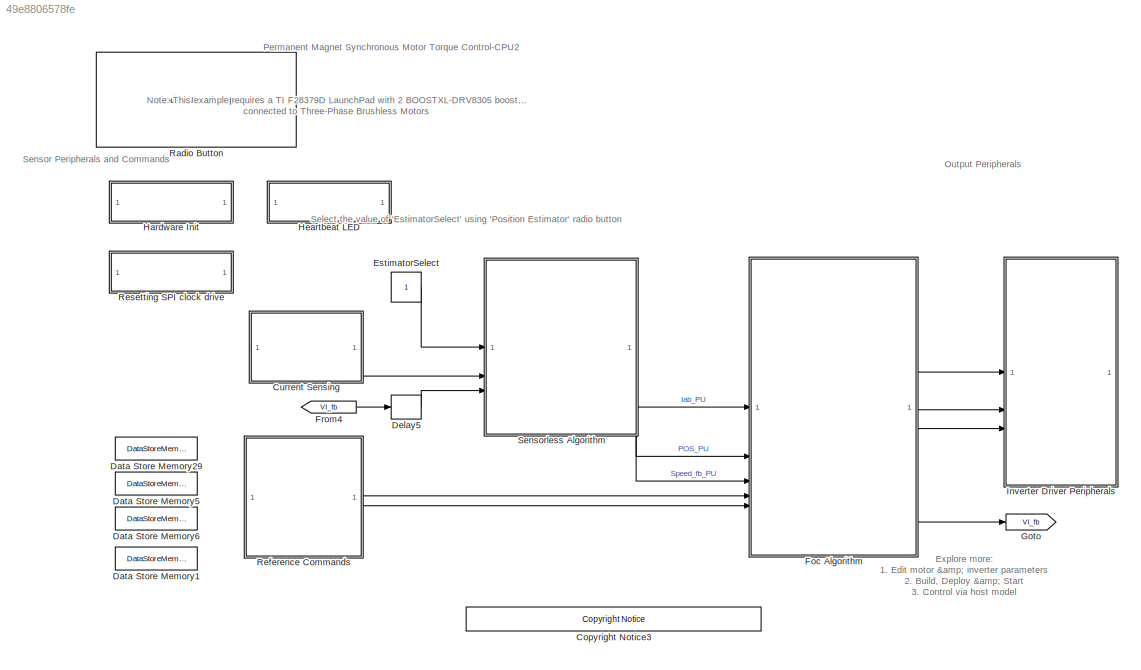
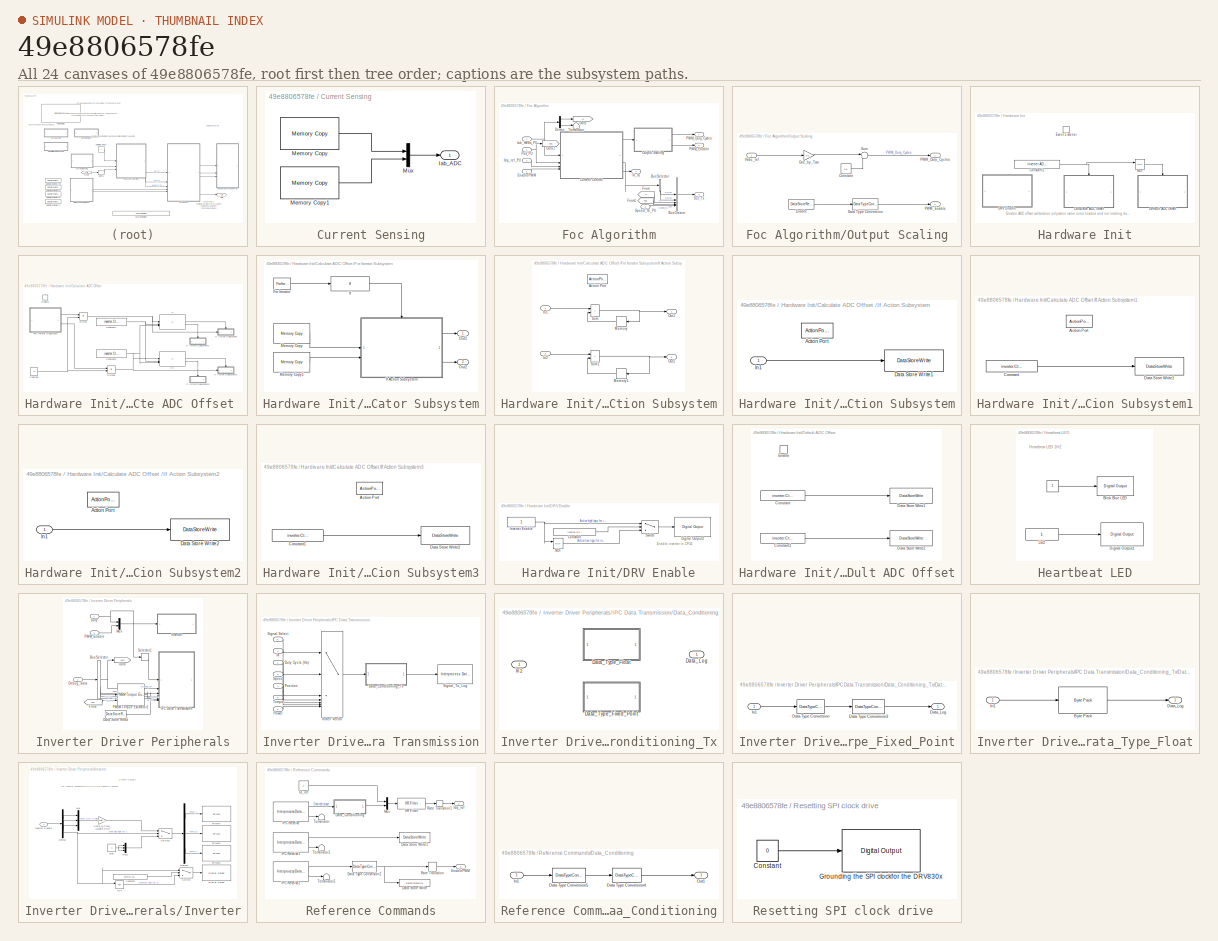
[diagram: thumbnail index - all 24 canvases of the model, root first then tree order]
MODEL slx_49e8806578fe
KIND model
CONFIG AbsTol = auto
CONFIG EnableMultiTasking = on
CONFIG FixedStep = auto
CONFIG InitFcn = mcb_pmsm_foc_dual_f28379d_datascript;
CONFIG MaxStep = auto
CONFIG MinStep = auto
CONFIG RelTol = 1e-3
CONFIG SampleTimeConstraint = Unconstrained
CONFIG SolverName = FixedStepDiscrete
CONFIG StartTime = 0.0
CONFIG StopTime = Inf
BLOCK [Reference] <copyright redacted>
  SourceBlock = demo_controls/<copyright redacted>
  SourceType = <copyright redacted>
BLOCK [SubSystem] Current Sensing
  RTWMemSecFuncExecute = code_ramfuncs
  RTWSystemCode = Nonreusable function
  SystemSampleTime = Ts
  TreatAsAtomicUnit = on
BLOCK [Outport] Current Sensing/Iab_ADC
BLOCK [Reference] Current Sensing/Memory Copy  REF=idelinklib_common/Memory Copy
  SourceBlock = idelinklib_common/Memory Copy
  SourceType = Memory Copy
BLOCK [Reference] Current Sensing/Memory Copy1  REF=idelinklib_common/Memory Copy
  SourceBlock = idelinklib_common/Memory Copy
  SourceType = Memory Copy
BLOCK [Mux] Current Sensing/Mux
  DisplayOption = bar
  Inputs = 2
BLOCK [DataStoreMemory] Data Store Memory1
  DataStoreName = SignalSelect2
  ShowAdditionalParam = off
BLOCK [DataStoreMemory] Data Store Memory29
  DataStoreName = Enable
  OutDataTypeStr = boolean
  ReadBeforeWriteMsg = warning
  ShowAdditionalParam = off
  WriteAfterReadMsg = warning
  WriteAfterWriteMsg = warning
BLOCK [DataStoreMemory] Data Store Memory5
  DataStoreName = IaOffset
  InitialValue = inverter.CtSensAOffset
  ShowAdditionalParam = off
BLOCK [DataStoreMemory] Data Store Memory6
  DataStoreName = IbOffset
  InitialValue = inverter.CtSensBOffset
  ShowAdditionalParam = off
BLOCK [Delay] Delay5
  DelayLength = 1
  InputPortMap = u0
BLOCK [Constant] EstimatorSelect
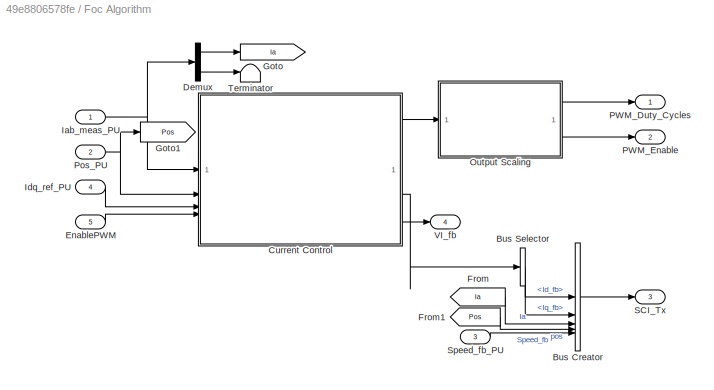
BLOCK [SubSystem] Foc Algorithm
  RTWMemSecFuncExecute = code_ramfuncs
  RTWSystemCode = Nonreusable function
  TreatAsAtomicUnit = on
BLOCK [BusCreator] Foc Algorithm/Bus Creator
  DisplayOption = bar
  InheritFromInputs = on
  Inputs = 5
BLOCK [BusSelector] Foc Algorithm/Bus Selector
  OutputSignals = Id_fb,Iq_fb
BLOCK [SubSystem] Foc Algorithm/Current Control
  Kid = PI_params.Ki_i*Ts
  Kiq = PI_params.Ki_i*Ts
  Kpd = PI_params.Kp_i
  Kpq = PI_params.Kp_i
  ReferencedSubsystem = current_control
BLOCK [Demux] Foc Algorithm/Demux
  Outputs = 2
BLOCK [Inport] Foc Algorithm/EnablePWM
  Port = 5
BLOCK [From] Foc Algorithm/From
  GotoTag = Ia
BLOCK [From] Foc Algorithm/From1
  GotoTag = Pos
BLOCK [Goto] Foc Algorithm/Goto
  GotoTag = Ia
BLOCK [Goto] Foc Algorithm/Goto1
  GotoTag = Pos
BLOCK [Inport] Foc Algorithm/Iab_meas_PU
BLOCK [Inport] Foc Algorithm/Idq_ref_PU
  Port = 4
BLOCK [SubSystem] Foc Algorithm/Output Scaling
BLOCK [Constant] Foc Algorithm/Output Scaling/Constant
  OutDataTypeStr = dataType
  SampleTime = -1
  Value = 0.5
BLOCK [DataTypeConversion] Foc Algorithm/Output Scaling/Data Type Conversion
  OutDataTypeStr = dataType
  RndMeth = Floor
  SaturateOnIntegerOverflow = off
BLOCK [DataStoreRead] Foc Algorithm/Output Scaling/Enable
  DataStoreName = Enable
  IndexOptions = Index vector (dialog)
  Indices = 1
  OutputSizes = 1
BLOCK [Gain] Foc Algorithm/Output Scaling/One_by_Two
  Gain = 0.5
  OutDataTypeStr = Inherit: Same as input
  RndMeth = Simplest
BLOCK [Outport] Foc Algorithm/Output Scaling/PWM_Duty_Cycles
BLOCK [Outport] Foc Algorithm/Output Scaling/PWM_Enable
  Port = 2
BLOCK [Sum] Foc Algorithm/Output Scaling/Sum
  AccumDataTypeStr = Inherit: Same as first input
  Inputs = |++
BLOCK [Inport] Foc Algorithm/Output Scaling/Vabc_ref
BLOCK [Outport] Foc Algorithm/PWM_Duty_Cycles
BLOCK [Outport] Foc Algorithm/PWM_Enable
  Port = 2
BLOCK [Inport] Foc Algorithm/Pos_PU
  Port = 2
BLOCK [Outport] Foc Algorithm/SCI_Tx
  Port = 3
BLOCK [Inport] Foc Algorithm/Speed_fb_PU
  Port = 3
BLOCK [Terminator] Foc Algorithm/Terminator
BLOCK [Outport] Foc Algorithm/VI_fb
  Port = 4
BLOCK [From] From4
  GotoTag = VI_fb
BLOCK [Goto] Goto
  GotoTag = VI_fb
BLOCK [SubSystem] Hardware Init
  TreatAsAtomicUnit = on
BLOCK [SubSystem] Hardware Init/Calculate ADC Offset 
  Priority = 1001
  TreatAsAtomicUnit = on
BLOCK [Constant] Hardware Init/Calculate ADC Offset /Constant
  Value = 8
BLOCK [Constant] Hardware Init/Calculate ADC Offset /Constant1
  OutDataTypeStr = Inherit: Inherit via back propagation
  Value = inverter.CtSensOffsetMax
BLOCK [Constant] Hardware Init/Calculate ADC Offset /Constant2
  OutDataTypeStr = Inherit: Inherit via back propagation
  Value = inverter.CtSensOffsetMin
BLOCK [Product] Hardware Init/Calculate ADC Offset /Divide
  Inputs = */
  OutDataTypeStr = uint16
BLOCK [Product] Hardware Init/Calculate ADC Offset /Divide1
  Inputs = */
  OutDataTypeStr = uint16
BLOCK [EnablePort] Hardware Init/Calculate ADC Offset /Enable
BLOCK [SubSystem] Hardware Init/Calculate ADC Offset /For Iterator Subsystem
  TreatAsAtomicUnit = on
BLOCK [ForIterator] Hardware Init/Calculate ADC Offset /For Iterator Subsystem/For Iterator
  IterationLimit = 16
  IterationVariableDataType = uint16
BLOCK [If] Hardware Init/Calculate ADC Offset /For Iterator Subsystem/If
  IfExpression = u1 > 8
  ShowElse = off
BLOCK [SubSystem] Hardware Init/Calculate ADC Offset /For Iterator Subsystem/If Action Subsystem
  TreatAsAtomicUnit = on
BLOCK [ActionPort] Hardware Init/Calculate ADC Offset /For Iterator Subsystem/If Action Subsystem/Action Port
BLOCK [Inport] Hardware Init/Calculate ADC Offset /For Iterator Subsystem/If Action Subsystem/In1
BLOCK [Inport] Hardware Init/Calculate ADC Offset /For Iterator Subsystem/If Action Subsystem/In2
  Port = 2
BLOCK [Memory] Hardware Init/Calculate ADC Offset /For Iterator Subsystem/If Action Subsystem/Memory
  InheritSampleTime = on
  NameLocation = top
BLOCK [Memory] Hardware Init/Calculate ADC Offset /For Iterator Subsystem/If Action Subsystem/Memory1
  InheritSampleTime = on
  NameLocation = top
BLOCK [Outport] Hardware Init/Calculate ADC Offset /For Iterator Subsystem/If Action Subsystem/Out1
BLOCK [Outport] Hardware Init/Calculate ADC Offset /For Iterator Subsystem/If Action Subsystem/Out2
  Port = 2
BLOCK [Sum] Hardware Init/Calculate ADC Offset /For Iterator Subsystem/If Action Subsystem/Sum
  IconShape = rectangular
BLOCK [Sum] Hardware Init/Calculate ADC Offset /For Iterator Subsystem/If Action Subsystem/Sum1
  IconShape = rectangular
BLOCK [Reference] Hardware Init/Calculate ADC Offset /For Iterator Subsystem/Memory Copy  REF=idelinklib_common/Memory Copy
  SourceBlock = idelinklib_common/Memory Copy
  SourceType = Memory Copy
BLOCK [Reference] Hardware Init/Calculate ADC Offset /For Iterator Subsystem/Memory Copy1  REF=idelinklib_common/Memory Copy
  SourceBlock = idelinklib_common/Memory Copy
  SourceType = Memory Copy
BLOCK [Outport] Hardware Init/Calculate ADC Offset /For Iterator Subsystem/Out1
BLOCK [Outport] Hardware Init/Calculate ADC Offset /For Iterator Subsystem/Out2
  Port = 2
BLOCK [If] Hardware Init/Calculate ADC Offset /If
  IfExpression = u1 > u3 & u1 < u2
  NumInputs = 3
BLOCK [SubSystem] Hardware Init/Calculate ADC Offset /If Action Subsystem
  TreatAsAtomicUnit = on
BLOCK [ActionPort] Hardware Init/Calculate ADC Offset /If Action Subsystem/Action Port
BLOCK [DataStoreWrite] Hardware Init/Calculate ADC Offset /If Action Subsystem/Data Store Write1
  DataStoreName = IaOffset
  IndexOptions = Index vector (dialog)
  Indices = 1
  OutputSizes = 1
BLOCK [Inport] Hardware Init/Calculate ADC Offset /If Action Subsystem/In1
BLOCK [SubSystem] Hardware Init/Calculate ADC Offset /If Action Subsystem1
  TreatAsAtomicUnit = on
BLOCK [ActionPort] Hardware Init/Calculate ADC Offset /If Action Subsystem1/Action Port
BLOCK [Constant] Hardware Init/Calculate ADC Offset /If Action Subsystem1/Constant
  OutDataTypeStr = Inherit: Inherit via back propagation
  Value = inverter.CtSensAOffset
BLOCK [DataStoreWrite] Hardware Init/Calculate ADC Offset /If Action Subsystem1/Data Store Write1
  DataStoreName = IaOffset
  IndexOptions = Index vector (dialog)
  Indices = 1
  OutputSizes = 1
BLOCK [SubSystem] Hardware Init/Calculate ADC Offset /If Action Subsystem2
  TreatAsAtomicUnit = on
BLOCK [ActionPort] Hardware Init/Calculate ADC Offset /If Action Subsystem2/Action Port
BLOCK [DataStoreWrite] Hardware Init/Calculate ADC Offset /If Action Subsystem2/Data Store Write2
  DataStoreName = IbOffset
  IndexOptions = Index vector (dialog)
  Indices = 1
  OutputSizes = 1
BLOCK [Inport] Hardware Init/Calculate ADC Offset /If Action Subsystem2/In1
BLOCK [SubSystem] Hardware Init/Calculate ADC Offset /If Action Subsystem3
  TreatAsAtomicUnit = on
BLOCK [ActionPort] Hardware Init/Calculate ADC Offset /If Action Subsystem3/Action Port
BLOCK [Constant] Hardware Init/Calculate ADC Offset /If Action Subsystem3/Constant1
  OutDataTypeStr = Inherit: Inherit via back propagation
  Value = inverter.CtSensBOffset
BLOCK [DataStoreWrite] Hardware Init/Calculate ADC Offset /If Action Subsystem3/Data Store Write2
  DataStoreName = IbOffset
  IndexOptions = Index vector (dialog)
  Indices = 1
  OutputSizes = 1
BLOCK [If] Hardware Init/Calculate ADC Offset /If1
  IfExpression = u1 > u3 & u1 < u2
  NumInputs = 3
BLOCK [Constant] Hardware Init/Constant1
  Value = inverter.ADCOffsetCalibEnable
BLOCK [SubSystem] Hardware Init/DRV Enable
  Priority = 1
BLOCK [Constant] Hardware Init/DRV Enable/Constant
  Value = inverter.EnableLogic
BLOCK [Reference] Hardware Init/DRV Enable/Digital Output2  REF=c2837xDlib/Digital Output
  SourceBlock = c2837xDlib/Digital Output
  SourceType = F2837x GPIO Digital Output
  UserDataPersistent = on
BLOCK [Constant] Hardware Init/DRV Enable/Inverter Enable
  OutDataTypeStr = uint16
  SampleTime = -1
BLOCK [Logic] Hardware Init/DRV Enable/NOT
  AllPortsSameDT = off
  IconShape = distinctive
  Operator = NOT
  OutDataTypeStr = boolean
BLOCK [Switch] Hardware Init/DRV Enable/Switch
  Criteria = u2 > Threshold
  InputSameDT = off
  SaturateOnIntegerOverflow = off
BLOCK [SubSystem] Hardware Init/Default ADC Offset
  Priority = 1001
  TreatAsAtomicUnit = on
BLOCK [Constant] Hardware Init/Default ADC Offset/Constant
  OutDataTypeStr = Inherit: Inherit via back propagation
  Value = inverter.CtSensAOffset
BLOCK [Constant] Hardware Init/Default ADC Offset/Constant1
  OutDataTypeStr = Inherit: Inherit via back propagation
  Value = inverter.CtSensBOffset
BLOCK [DataStoreWrite] Hardware Init/Default ADC Offset/Data Store Write1
  DataStoreName = IaOffset
  IndexOptions = Index vector (dialog)
  Indices = 1
  OutputSizes = 1
BLOCK [DataStoreWrite] Hardware Init/Default ADC Offset/Data Store Write2
  DataStoreName = IbOffset
  IndexOptions = Index vector (dialog)
  Indices = 1
  OutputSizes = 1
BLOCK [EnablePort] Hardware Init/Default ADC Offset/Enable
BLOCK [EventListener] Hardware Init/Event Listener
  DisableCoverage = on
  EventName = reset
BLOCK [Logic] Hardware Init/NOT
  AllPortsSameDT = off
  IconShape = distinctive
  Operator = NOT
  OutDataTypeStr = boolean
BLOCK [SubSystem] Heartbeat LED
  TreatAsAtomicUnit = on
BLOCK [Constant] Heartbeat LED/ 
  OutDataTypeStr = uint16
  SampleTime = 0.5
BLOCK [Reference] Heartbeat LED/Blink Blue LED  REF=c2837xDlib/Digital Output
  SourceBlock = c2837xDlib/Digital Output
  SourceType = F2837x GPIO Digital Output
  UserDataPersistent = on
BLOCK [Reference] Heartbeat LED/Digital Output1  REF=c2837xDlib/Digital Output
  SourceBlock = c2837xDlib/Digital Output
  SourceType = F2837x GPIO Digital Output
  UserDataPersistent = on
BLOCK [Constant] Heartbeat LED/LED
  OutDataTypeStr = uint16
  SampleTime = -1
BLOCK [SubSystem] Inverter Driver Peripherals
  RTWMemSecFuncExecute = code_ramfuncs
  RTWSystemCode = Nonreusable function
  TreatAsAtomicUnit = on
BLOCK [BusSelector] Inverter Driver Peripherals/Bus Selector
  OutputSignals = Speed_fb,pos,Ia,Id_fb,Iq_fb
BLOCK [DataStoreRead] Inverter Driver Peripherals/Data Store Read
  DataStoreName = SignalSelect2
  IndexOptions = Index vector (dialog)
  Indices = 1
  OutputSizes = 1
BLOCK [Inport] Inverter Driver Peripherals/Debug_data
  Port = 3
BLOCK [Inport] Inverter Driver Peripherals/Duty
BLOCK [From] Inverter Driver Peripherals/From
  GotoTag = Wm
BLOCK [Goto] Inverter Driver Peripherals/Goto
  GotoTag = Wm
BLOCK [SubSystem] Inverter Driver Peripherals/IPC Data Transmission
BLOCK [SubSystem] Inverter Driver Peripherals/IPC Data Transmission/Data_Conditioning_Tx
  Variant = on
BLOCK [Outport] Inverter Driver Peripherals/IPC Data Transmission/Data_Conditioning_Tx/Data_Log
BLOCK [SubSystem] Inverter Driver Peripherals/IPC Data Transmission/Data_Conditioning_Tx/Data_Type_Fixed_Point
  VariantControl = ~isequal(dataType,'single')
BLOCK [DataTypeConversion] Inverter Driver Peripherals/IPC Data Transmission/Data_Conditioning_Tx/Data_Type_Fixed_Point/Data Type Conversion
  OutDataTypeStr = fixdt(1,32,28)
  RndMeth = Simplest
  SaturateOnIntegerOverflow = off
BLOCK [DataTypeConversion] Inverter Driver Peripherals/IPC Data Transmission/Data_Conditioning_Tx/Data_Type_Fixed_Point/Data Type Conversion3
  ConvertRealWorld = Stored Integer (SI)
  OutDataTypeStr = uint32
  RndMeth = Simplest
  SaturateOnIntegerOverflow = off
BLOCK [Outport] Inverter Driver Peripherals/IPC Data Transmission/Data_Conditioning_Tx/Data_Type_Fixed_Point/Data_Log
BLOCK [Inport] Inverter Driver Peripherals/IPC Data Transmission/Data_Conditioning_Tx/Data_Type_Fixed_Point/In1
BLOCK [SubSystem] Inverter Driver Peripherals/IPC Data Transmission/Data_Conditioning_Tx/Data_Type_Float
  VariantControl = isequal(dataType, 'single')
BLOCK [Reference] Inverter Driver Peripherals/IPC Data Transmission/Data_Conditioning_Tx/Data_Type_Float/Byte Pack  REF=svdutilitieslib/Byte Pack
  SourceBlock = svdutilitieslib/Byte Pack
  SourceType = Byte pack
BLOCK [Outport] Inverter Driver Peripherals/IPC Data Transmission/Data_Conditioning_Tx/Data_Type_Float/Data_Log
BLOCK [Inport] Inverter Driver Peripherals/IPC Data Transmission/Data_Conditioning_Tx/Data_Type_Float/In1
BLOCK [Inport] Inverter Driver Peripherals/IPC Data Transmission/Data_Conditioning_Tx/In1
BLOCK [Inport] Inverter Driver Peripherals/IPC Data Transmission/Duty Cycle (Va)
BLOCK [Inport] Inverter Driver Peripherals/IPC Data Transmission/Ia
  Port = 4
BLOCK [MultiPortSwitch] Inverter Driver Peripherals/IPC Data Transmission/Index Vector
  DataPortOrder = Zero-based contiguous
  InputSameDT = off
  Inputs = 6
  SaturateOnIntegerOverflow = off
  zeroidx = on
BLOCK [Inport] Inverter Driver Peripherals/IPC Data Transmission/Position
  Port = 3
BLOCK [Inport] Inverter Driver Peripherals/IPC Data Transmission/Power
  Port = 6
BLOCK [Inport] Inverter Driver Peripherals/IPC Data Transmission/Signal Select
  Port = 7
BLOCK [Reference] Inverter Driver Peripherals/IPC Data Transmission/Signal_To_Log  REF=procinterlib/Interprocess Data Write
  SourceBlock = procinterlib/Interprocess Data Write
  SourceType = Interprocess Data Write
BLOCK [Inport] Inverter Driver Peripherals/IPC Data Transmission/Speed
  Port = 2
BLOCK [Inport] Inverter Driver Peripherals/IPC Data Transmission/Torque
  Port = 5
BLOCK [SubSystem] Inverter Driver Peripherals/Inverter
BLOCK [Constant] Inverter Driver Peripherals/Inverter/Constant
  Value = inverter.EnableLogic
BLOCK [Demux] Inverter Driver Peripherals/Inverter/Demux
BLOCK [Demux] Inverter Driver Peripherals/Inverter/Demux1
  Outputs = 3
BLOCK [Reference] Inverter Driver Peripherals/Inverter/Digital Output  REF=c2837xDlib/Digital Output
  SourceBlock = c2837xDlib/Digital Output
  SourceType = F2837x GPIO Digital Output
  UserDataPersistent = on
BLOCK [Inport] Inverter Driver Peripherals/Inverter/Inverter Signals
BLOCK [Mux] Inverter Driver Peripherals/Inverter/Mux
  DisplayOption = bar
  Inputs = 3
BLOCK [Mux] Inverter Driver Peripherals/Inverter/Mux2
  DisplayOption = bar
  Inputs = 3
BLOCK [Logic] Inverter Driver Peripherals/Inverter/NOT
  AllPortsSameDT = off
  IconShape = distinctive
  Operator = NOT
  OutDataTypeStr = boolean
BLOCK [Gain] Inverter Driver Peripherals/Inverter/Scale_to_PWM_Counter_PRD
  Gain = target.PWM_Counter_Period
  OutDataTypeStr = uint16
  RndMeth = Simplest
BLOCK [Switch] Inverter Driver Peripherals/Inverter/Switch
  Criteria = u2 > Threshold
  InputSameDT = off
  SaturateOnIntegerOverflow = off
BLOCK [Switch] Inverter Driver Peripherals/Inverter/Switch1
  InputSameDT = off
  SaturateOnIntegerOverflow = off
  Threshold = 0.5
BLOCK [Reference] Inverter Driver Peripherals/Inverter/ePWM4  REF=c2802xlib/ePWM
  SourceBlock = c2802xlib/ePWM
  SourceType = ePWM Type 1-4
  UserDataPersistent = on
BLOCK [Reference] Inverter Driver Peripherals/Inverter/ePWM5  REF=c2802xlib/ePWM
  SourceBlock = c2802xlib/ePWM
  SourceType = ePWM Type 1-4
  UserDataPersistent = on
BLOCK [Reference] Inverter Driver Peripherals/Inverter/ePWM6  REF=c2802xlib/ePWM
  SourceBlock = c2802xlib/ePWM
  SourceType = ePWM Type 1-4
  UserDataPersistent = on
BLOCK [Constant] Inverter Driver Peripherals/Inverter/stop
  OutDataTypeStr = uint16
  Value = 0
BLOCK [Mux] Inverter Driver Peripherals/Mux
  DisplayOption = bar
  Inputs = 2
BLOCK [Reference] Inverter Driver Peripherals/PMSM Torque Estimator1  REF=mcbpmsmnonlinearlib/PMSM Torque Estimator
  SourceBlock = mcbpmsmnonlinearlib/PMSM Torque Estimator
  SourceType = PMSM Torque Estimator
BLOCK [Inport] Inverter Driver Peripherals/PWM_Enable
  Port = 2
BLOCK [Selector] Inverter Driver Peripherals/Selector1
  IndexOptions = Index vector (dialog)
  Indices = [1]
  InputPortWidth = 3
  OutputSizes = 1
BLOCK [RadioButtonGroup] Radio Button
  ButtonGroupName = Postion Estimator
  LabelPosition = Hide
  SelectedLabel = Flux observer
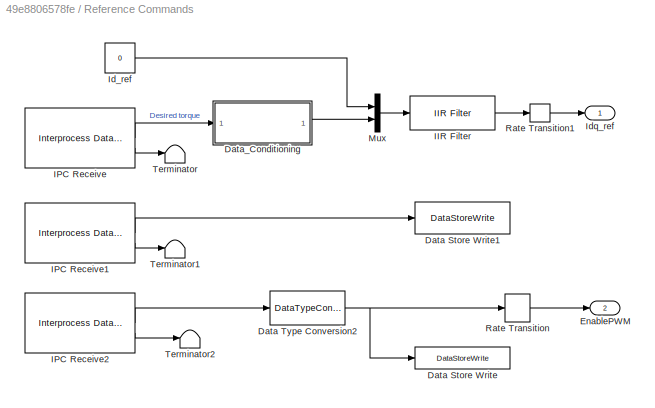
BLOCK [SubSystem] Reference Commands
BLOCK [DataStoreWrite] Reference Commands/Data Store Write
  DataStoreName = Enable
  IndexOptions = Index vector (dialog)
  Indices = 1
  OutputSizes = 1
BLOCK [DataStoreWrite] Reference Commands/Data Store Write1
  DataStoreName = SignalSelect2
  IndexOptions = Index vector (dialog)
  Indices = 1
  OutputSizes = 1
BLOCK [DataTypeConversion] Reference Commands/Data Type Conversion2
  OutDataTypeStr = boolean
  RndMeth = Floor
  SaturateOnIntegerOverflow = off
BLOCK [SubSystem] Reference Commands/Data_Conditioning
BLOCK [DataTypeConversion] Reference Commands/Data_Conditioning/Data Type Conversion4
  OutDataTypeStr = dataType
  RndMeth = Simplest
  SaturateOnIntegerOverflow = off
BLOCK [DataTypeConversion] Reference Commands/Data_Conditioning/Data Type Conversion5
  ConvertRealWorld = Stored Integer (SI)
  OutDataTypeStr = fixdt(1,32,28)
  RndMeth = Simplest
  SaturateOnIntegerOverflow = off
BLOCK [Inport] Reference Commands/Data_Conditioning/In1
BLOCK [Outport] Reference Commands/Data_Conditioning/Out1
BLOCK [Outport] Reference Commands/EnablePWM
  Port = 2
BLOCK [Reference] Reference Commands/IIR Filter  REF=mcbcontrolslib/IIR Filter
  SourceBlock = mcbcontrolslib/IIR Filter
  SourceType = IIR Filter
BLOCK [Reference] Reference Commands/IPC Receive  REF=procinterlib/Interprocess Data Read
  SourceBlock = procinterlib/Interprocess Data Read
  SourceType = Interprocess Data Read
BLOCK [Reference] Reference Commands/IPC Receive1  REF=procinterlib/Interprocess Data Read
  SourceBlock = procinterlib/Interprocess Data Read
  SourceType = Interprocess Data Read
BLOCK [Reference] Reference Commands/IPC Receive2  REF=procinterlib/Interprocess Data Read
  SourceBlock = procinterlib/Interprocess Data Read
  SourceType = Interprocess Data Read
BLOCK [Constant] Reference Commands/Id_ref
  OutDataTypeStr = dataType
  Value = 0
BLOCK [Outport] Reference Commands/Idq_ref
  VectorParamsAs1DForOutWhenUnconnected = off
BLOCK [Mux] Reference Commands/Mux
  DisplayOption = bar
  Inputs = 2
BLOCK [RateTransition] Reference Commands/Rate Transition
  Deterministic = off
BLOCK [RateTransition] Reference Commands/Rate Transition1
  Integrity = off
BLOCK [Terminator] Reference Commands/Terminator
BLOCK [Terminator] Reference Commands/Terminator1
BLOCK [Terminator] Reference Commands/Terminator2
BLOCK [SubSystem] Resetting SPI clock drive 
BLOCK [Constant] Resetting SPI clock drive /Constant
  OutDataTypeStr = uint16
  SampleTime = 0.01
  Value = 0
BLOCK [Reference] Resetting SPI clock drive /Grounding the SPI clockfor the DRV830x  REF=c2837xDlib/Digital Output
  SourceBlock = c2837xDlib/Digital Output
  SourceType = F2837x GPIO Digital Output
  UserDataPersistent = on
BLOCK [SubSystem] Sensorless Algorithm
  RTWMemSecFuncExecute = code_ramfuncs
  RTWSystemCode = Nonreusable function
  ReferencedSubsystem = sensorless_algorithm
  TreatAsAtomicUnit = on
ANNOTATION (root): Explore more: 1. Edit motor & inverter parameters 2. Build, Deploy & Start 3. Control via host model
ANNOTATION (root): Note: This example requires a TI F28379D LaunchPad with 2 BOOSTXL-DRV8305 booster packs connected to Three-Phase Brushless Motors
ANNOTATION (root): Output Peripherals
ANNOTATION (root): Permanent Magnet Synchronous Motor Torque Control-CPU2
ANNOTATION (root): Select the value of 'EstimatorSelect' using 'Position Estimator' radio button
ANNOTATION (root): Sensor Peripherals and Commands
ANNOTATION Hardware Init: Enable ADC offset calibration only when motor is not loaded and not rotating due to external factors
ANNOTATION Hardware Init/DRV Enable: Enable inverter in CPU2
ANNOTATION Heartbeat LED: Heartbeat LED 1HZ
ANNOTATION Inverter Driver Peripherals/Inverter: System Outputs
ANNOTATION Inverter Driver Peripherals/Inverter: for inverter connected with CPU2 of LaunchXL-28379D
LINE Current Sensing/Memory Copy1:1 -> Current Sensing/Mux:2
LINE Current Sensing/Memory Copy:1 -> Current Sensing/Mux:1
LINE Current Sensing/Mux:1 -> Current Sensing/Iab_ADC:1
LINE Current Sensing:1 -> Sensorless Algorithm:2
LINE Delay5:1 -> Sensorless Algorithm:3
LINE EstimatorSelect:1 -> Sensorless Algorithm:1
LINE Foc Algorithm/Bus Creator:1 -> Foc Algorithm/SCI_Tx:1
LINE Foc Algorithm/Bus Selector:1 -> Foc Algorithm/Bus Creator:1
LINE Foc Algorithm/Bus Selector:2 -> Foc Algorithm/Bus Creator:2
LINE Foc Algorithm/Current Control:1 -> Foc Algorithm/Output Scaling:1
LINE Foc Algorithm/Current Control:2 -> Foc Algorithm/Bus Selector:1
LINE Foc Algorithm/Current Control:3 -> Foc Algorithm/VI_fb:1
LINE Foc Algorithm/Demux:1 -> Foc Algorithm/Goto:1
LINE Foc Algorithm/Demux:2 -> Foc Algorithm/Terminator:1
LINE Foc Algorithm/EnablePWM:1 -> Foc Algorithm/Current Control:4
LINE Foc Algorithm/From1:1 -> Foc Algorithm/Bus Creator:4
LINE Foc Algorithm/From:1 -> Foc Algorithm/Bus Creator:3
NET Foc Algorithm/Iab_meas_PU:1 -> Foc Algorithm/Current Control:1, Foc Algorithm/Demux:1
LINE Foc Algorithm/Idq_ref_PU:1 -> Foc Algorithm/Current Control:3
LINE Foc Algorithm/Output Scaling/Constant:1 -> Foc Algorithm/Output Scaling/Sum:2
LINE Foc Algorithm/Output Scaling/Data Type Conversion:1 -> Foc Algorithm/Output Scaling/PWM_Enable:1
LINE Foc Algorithm/Output Scaling/Enable:1 -> Foc Algorithm/Output Scaling/Data Type Conversion:1
LINE Foc Algorithm/Output Scaling/One_by_Two:1 -> Foc Algorithm/Output Scaling/Sum:1
LINE Foc Algorithm/Output Scaling/Sum:1 -> Foc Algorithm/Output Scaling/PWM_Duty_Cycles:1
LINE Foc Algorithm/Output Scaling/Vabc_ref:1 -> Foc Algorithm/Output Scaling/One_by_Two:1
LINE Foc Algorithm/Output Scaling:1 -> Foc Algorithm/PWM_Duty_Cycles:1
LINE Foc Algorithm/Output Scaling:2 -> Foc Algorithm/PWM_Enable:1
NET Foc Algorithm/Pos_PU:1 -> Foc Algorithm/Current Control:2, Foc Algorithm/Goto1:1
LINE Foc Algorithm/Speed_fb_PU:1 -> Foc Algorithm/Bus Creator:5
LINE Foc Algorithm:1 -> Inverter Driver Peripherals:1
LINE Foc Algorithm:2 -> Inverter Driver Peripherals:2
LINE Foc Algorithm:3 -> Inverter Driver Peripherals:3
LINE Foc Algorithm:4 -> Goto:1
LINE From4:1 -> Delay5:1
NET Hardware Init/Calculate ADC Offset /Constant1:1 -> Hardware Init/Calculate ADC Offset /If1:2, Hardware Init/Calculate ADC Offset /If:2
NET Hardware Init/Calculate ADC Offset /Constant2:1 -> Hardware Init/Calculate ADC Offset /If1:3, Hardware Init/Calculate ADC Offset /If:3
NET Hardware Init/Calculate ADC Offset /Constant:1 -> Hardware Init/Calculate ADC Offset /Divide1:2, Hardware Init/Calculate ADC Offset /Divide:2
NET Hardware Init/Calculate ADC Offset /Divide1:1 -> Hardware Init/Calculate ADC Offset /If Action Subsystem2:1, Hardware Init/Calculate ADC Offset /If1:1
NET Hardware Init/Calculate ADC Offset /Divide:1 -> Hardware Init/Calculate ADC Offset /If Action Subsystem:1, Hardware Init/Calculate ADC Offset /If:1
LINE Hardware Init/Calculate ADC Offset /For Iterator Subsystem/For Iterator:1 -> Hardware Init/Calculate ADC Offset /For Iterator Subsystem/If:1
LINE Hardware Init/Calculate ADC Offset /For Iterator Subsystem/If Action Subsystem/In1:1 -> Hardware Init/Calculate ADC Offset /For Iterator Subsystem/If Action Subsystem/Sum:1
LINE Hardware Init/Calculate ADC Offset /For Iterator Subsystem/If Action Subsystem/In2:1 -> Hardware Init/Calculate ADC Offset /For Iterator Subsystem/If Action Subsystem/Sum1:1
LINE Hardware Init/Calculate ADC Offset /For Iterator Subsystem/If Action Subsystem/Memory1:1 -> Hardware Init/Calculate ADC Offset /For Iterator Subsystem/If Action Subsystem/Sum1:2
LINE Hardware Init/Calculate ADC Offset /For Iterator Subsystem/If Action Subsystem/Memory:1 -> Hardware Init/Calculate ADC Offset /For Iterator Subsystem/If Action Subsystem/Sum:2
NET Hardware Init/Calculate ADC Offset /For Iterator Subsystem/If Action Subsystem/Sum1:1 -> Hardware Init/Calculate ADC Offset /For Iterator Subsystem/If Action Subsystem/Memory1:1, Hardware Init/Calculate ADC Offset /For Iterator Subsystem/If Action Subsystem/Out2:1
NET Hardware Init/Calculate ADC Offset /For Iterator Subsystem/If Action Subsystem/Sum:1 -> Hardware Init/Calculate ADC Offset /For Iterator Subsystem/If Action Subsystem/Memory:1, Hardware Init/Calculate ADC Offset /For Iterator Subsystem/If Action Subsystem/Out1:1
LINE Hardware Init/Calculate ADC Offset /For Iterator Subsystem/If Action Subsystem:1 -> Hardware Init/Calculate ADC Offset /For Iterator Subsystem/Out1:1
LINE Hardware Init/Calculate ADC Offset /For Iterator Subsystem/If Action Subsystem:2 -> Hardware Init/Calculate ADC Offset /For Iterator Subsystem/Out2:1
LINE Hardware Init/Calculate ADC Offset /For Iterator Subsystem/If:1 -> Hardware Init/Calculate ADC Offset /For Iterator Subsystem/If Action Subsystem:ifaction
LINE Hardware Init/Calculate ADC Offset /For Iterator Subsystem/Memory Copy1:1 -> Hardware Init/Calculate ADC Offset /For Iterator Subsystem/If Action Subsystem:2
LINE Hardware Init/Calculate ADC Offset /For Iterator Subsystem/Memory Copy:1 -> Hardware Init/Calculate ADC Offset /For Iterator Subsystem/If Action Subsystem:1
LINE Hardware Init/Calculate ADC Offset /For Iterator Subsystem:1 -> Hardware Init/Calculate ADC Offset /Divide:1
LINE Hardware Init/Calculate ADC Offset /For Iterator Subsystem:2 -> Hardware Init/Calculate ADC Offset /Divide1:1
LINE Hardware Init/Calculate ADC Offset /If Action Subsystem/In1:1 -> Hardware Init/Calculate ADC Offset /If Action Subsystem/Data Store Write1:1
LINE Hardware Init/Calculate ADC Offset /If Action Subsystem1/Constant:1 -> Hardware Init/Calculate ADC Offset /If Action Subsystem1/Data Store Write1:1
LINE Hardware Init/Calculate ADC Offset /If Action Subsystem2/In1:1 -> Hardware Init/Calculate ADC Offset /If Action Subsystem2/Data Store Write2:1
LINE Hardware Init/Calculate ADC Offset /If Action Subsystem3/Constant1:1 -> Hardware Init/Calculate ADC Offset /If Action Subsystem3/Data Store Write2:1
LINE Hardware Init/Calculate ADC Offset /If1:1 -> Hardware Init/Calculate ADC Offset /If Action Subsystem2:ifaction
LINE Hardware Init/Calculate ADC Offset /If1:2 -> Hardware Init/Calculate ADC Offset /If Action Subsystem3:ifaction
LINE Hardware Init/Calculate ADC Offset /If:1 -> Hardware Init/Calculate ADC Offset /If Action Subsystem:ifaction
LINE Hardware Init/Calculate ADC Offset /If:2 -> Hardware Init/Calculate ADC Offset /If Action Subsystem1:ifaction
NET Hardware Init/Constant1:1 -> Hardware Init/Calculate ADC Offset :enable, Hardware Init/NOT:1
LINE Hardware Init/DRV Enable/Constant:1 -> Hardware Init/DRV Enable/Switch:2
NET Hardware Init/DRV Enable/Inverter Enable:1 -> Hardware Init/DRV Enable/NOT:1, Hardware Init/DRV Enable/Switch:1
LINE Hardware Init/DRV Enable/NOT:1 -> Hardware Init/DRV Enable/Switch:3
LINE Hardware Init/DRV Enable/Switch:1 -> Hardware Init/DRV Enable/Digital Output2:1
LINE Hardware Init/Default ADC Offset/Constant1:1 -> Hardware Init/Default ADC Offset/Data Store Write2:1
LINE Hardware Init/Default ADC Offset/Constant:1 -> Hardware Init/Default ADC Offset/Data Store Write1:1
LINE Hardware Init/NOT:1 -> Hardware Init/Default ADC Offset:enable
LINE Heartbeat LED/ :1 -> Heartbeat LED/Blink Blue LED:1
LINE Heartbeat LED/LED:1 -> Heartbeat LED/Digital Output1:1
NET Inverter Driver Peripherals/Bus Selector:1 -> Inverter Driver Peripherals/Goto:1, Inverter Driver Peripherals/IPC Data Transmission:2
LINE Inverter Driver Peripherals/Bus Selector:2 -> Inverter Driver Peripherals/IPC Data Transmission:3
LINE Inverter Driver Peripherals/Bus Selector:3 -> Inverter Driver Peripherals/IPC Data Transmission:4
LINE Inverter Driver Peripherals/Bus Selector:4 -> Inverter Driver Peripherals/PMSM Torque Estimator1:1
LINE Inverter Driver Peripherals/Bus Selector:5 -> Inverter Driver Peripherals/PMSM Torque Estimator1:2
LINE Inverter Driver Peripherals/Data Store Read:1 -> Inverter Driver Peripherals/IPC Data Transmission:7
LINE Inverter Driver Peripherals/Debug_data:1 -> Inverter Driver Peripherals/Bus Selector:1
NET Inverter Driver Peripherals/Duty:1 -> Inverter Driver Peripherals/Mux:1, Inverter Driver Peripherals/Selector1:1
LINE Inverter Driver Peripherals/From:1 -> Inverter Driver Peripherals/PMSM Torque Estimator1:3
LINE Inverter Driver Peripherals/IPC Data Transmission/Data_Conditioning_Tx/Data_Type_Fixed_Point/Data Type Conversion3:1 -> Inverter Driver Peripherals/IPC Data Transmission/Data_Conditioning_Tx/Data_Type_Fixed_Point/Data_Log:1
LINE Inverter Driver Peripherals/IPC Data Transmission/Data_Conditioning_Tx/Data_Type_Fixed_Point/Data Type Conversion:1 -> Inverter Driver Peripherals/IPC Data Transmission/Data_Conditioning_Tx/Data_Type_Fixed_Point/Data Type Conversion3:1
LINE Inverter Driver Peripherals/IPC Data Transmission/Data_Conditioning_Tx/Data_Type_Fixed_Point/In1:1 -> Inverter Driver Peripherals/IPC Data Transmission/Data_Conditioning_Tx/Data_Type_Fixed_Point/Data Type Conversion:1
LINE Inverter Driver Peripherals/IPC Data Transmission/Data_Conditioning_Tx/Data_Type_Float/Byte Pack:1 -> Inverter Driver Peripherals/IPC Data Transmission/Data_Conditioning_Tx/Data_Type_Float/Data_Log:1
LINE Inverter Driver Peripherals/IPC Data Transmission/Data_Conditioning_Tx/Data_Type_Float/In1:1 -> Inverter Driver Peripherals/IPC Data Transmission/Data_Conditioning_Tx/Data_Type_Float/Byte Pack:1
LINE Inverter Driver Peripherals/IPC Data Transmission/Data_Conditioning_Tx:1 -> Inverter Driver Peripherals/IPC Data Transmission/Signal_To_Log:1
LINE Inverter Driver Peripherals/IPC Data Transmission/Duty Cycle (Va):1 -> Inverter Driver Peripherals/IPC Data Transmission/Index Vector:3
LINE Inverter Driver Peripherals/IPC Data Transmission/Ia:1 -> Inverter Driver Peripherals/IPC Data Transmission/Index Vector:2
LINE Inverter Driver Peripherals/IPC Data Transmission/Index Vector:1 -> Inverter Driver Peripherals/IPC Data Transmission/Data_Conditioning_Tx:1
LINE Inverter Driver Peripherals/IPC Data Transmission/Position:1 -> Inverter Driver Peripherals/IPC Data Transmission/Index Vector:5
LINE Inverter Driver Peripherals/IPC Data Transmission/Power:1 -> Inverter Driver Peripherals/IPC Data Transmission/Index Vector:7
LINE Inverter Driver Peripherals/IPC Data Transmission/Signal Select:1 -> Inverter Driver Peripherals/IPC Data Transmission/Index Vector:1
LINE Inverter Driver Peripherals/IPC Data Transmission/Speed:1 -> Inverter Driver Peripherals/IPC Data Transmission/Index Vector:4
LINE Inverter Driver Peripherals/IPC Data Transmission/Torque:1 -> Inverter Driver Peripherals/IPC Data Transmission/Index Vector:6
LINE Inverter Driver Peripherals/Inverter/Constant:1 -> Inverter Driver Peripherals/Inverter/Switch:2
LINE Inverter Driver Peripherals/Inverter/Demux1:1 -> Inverter Driver Peripherals/Inverter/ePWM4:1
LINE Inverter Driver Peripherals/Inverter/Demux1:2 -> Inverter Driver Peripherals/Inverter/ePWM5:1
LINE Inverter Driver Peripherals/Inverter/Demux1:3 -> Inverter Driver Peripherals/Inverter/ePWM6:1
LINE Inverter Driver Peripherals/Inverter/Demux:1 -> Inverter Driver Peripherals/Inverter/Mux:1
LINE Inverter Driver Peripherals/Inverter/Demux:2 -> Inverter Driver Peripherals/Inverter/Mux:2
LINE Inverter Driver Peripherals/Inverter/Demux:3 -> Inverter Driver Peripherals/Inverter/Mux:3
NET Inverter Driver Peripherals/Inverter/Demux:4 -> Inverter Driver Peripherals/Inverter/NOT:1, Inverter Driver Peripherals/Inverter/Switch1:2, Inverter Driver Peripherals/Inverter/Switch:1
LINE Inverter Driver Peripherals/Inverter/Inverter Signals:1 -> Inverter Driver Peripherals/Inverter/Demux:1
LINE Inverter Driver Peripherals/Inverter/Mux2:1 -> Inverter Driver Peripherals/Inverter/Switch1:3
LINE Inverter Driver Peripherals/Inverter/Mux:1 -> Inverter Driver Peripherals/Inverter/Scale_to_PWM_Counter_PRD:1
LINE Inverter Driver Peripherals/Inverter/NOT:1 -> Inverter Driver Peripherals/Inverter/Switch:3
LINE Inverter Driver Peripherals/Inverter/Scale_to_PWM_Counter_PRD:1 -> Inverter Driver Peripherals/Inverter/Switch1:1
LINE Inverter Driver Peripherals/Inverter/Switch1:1 -> Inverter Driver Peripherals/Inverter/Demux1:1
LINE Inverter Driver Peripherals/Inverter/Switch:1 -> Inverter Driver Peripherals/Inverter/Digital Output:1
NET Inverter Driver Peripherals/Inverter/stop:1 -> Inverter Driver Peripherals/Inverter/Mux2:1, Inverter Driver Peripherals/Inverter/Mux2:2, Inverter Driver Peripherals/Inverter/Mux2:3
LINE Inverter Driver Peripherals/Mux:1 -> Inverter Driver Peripherals/Inverter:1
LINE Inverter Driver Peripherals/PMSM Torque Estimator1:1 -> Inverter Driver Peripherals/IPC Data Transmission:5
LINE Inverter Driver Peripherals/PMSM Torque Estimator1:2 -> Inverter Driver Peripherals/IPC Data Transmission:6
LINE Inverter Driver Peripherals/PWM_Enable:1 -> Inverter Driver Peripherals/Mux:2
LINE Inverter Driver Peripherals/Selector1:1 -> Inverter Driver Peripherals/IPC Data Transmission:1
NET Reference Commands/Data Type Conversion2:1 -> Reference Commands/Data Store Write:1, Reference Commands/Rate Transition:1
LINE Reference Commands/Data_Conditioning/Data Type Conversion4:1 -> Reference Commands/Data_Conditioning/Out1:1
LINE Reference Commands/Data_Conditioning/Data Type Conversion5:1 -> Reference Commands/Data_Conditioning/Data Type Conversion4:1
LINE Reference Commands/Data_Conditioning/In1:1 -> Reference Commands/Data_Conditioning/Data Type Conversion5:1
LINE Reference Commands/Data_Conditioning:1 -> Reference Commands/Mux:2
LINE Reference Commands/IIR Filter:1 -> Reference Commands/Rate Transition1:1
LINE Reference Commands/IPC Receive1:1 -> Reference Commands/Data Store Write1:1
LINE Reference Commands/IPC Receive1:2 -> Reference Commands/Terminator1:1
LINE Reference Commands/IPC Receive2:1 -> Reference Commands/Data Type Conversion2:1
LINE Reference Commands/IPC Receive2:2 -> Reference Commands/Terminator2:1
LINE Reference Commands/IPC Receive:1 -> Reference Commands/Data_Conditioning:1
LINE Reference Commands/IPC Receive:2 -> Reference Commands/Terminator:1
LINE Reference Commands/Id_ref:1 -> Reference Commands/Mux:1
LINE Reference Commands/Mux:1 -> Reference Commands/IIR Filter:1
LINE Reference Commands/Rate Transition1:1 -> Reference Commands/Idq_ref:1
LINE Reference Commands/Rate Transition:1 -> Reference Commands/EnablePWM:1
LINE Reference Commands:1 -> Foc Algorithm:4
LINE Reference Commands:2 -> Foc Algorithm:5
LINE Resetting SPI clock drive /Constant:1 -> Resetting SPI clock drive /Grounding the SPI clockfor the DRV830x:1
LINE Sensorless Algorithm:1 -> Foc Algorithm:1
LINE Sensorless Algorithm:2 -> Foc Algorithm:2
LINE Sensorless Algorithm:3 -> Foc Algorithm:3
note: NET lines group one-source signal fan-out (src -> all destinations, sorted); 1:1 wires keep LINE
